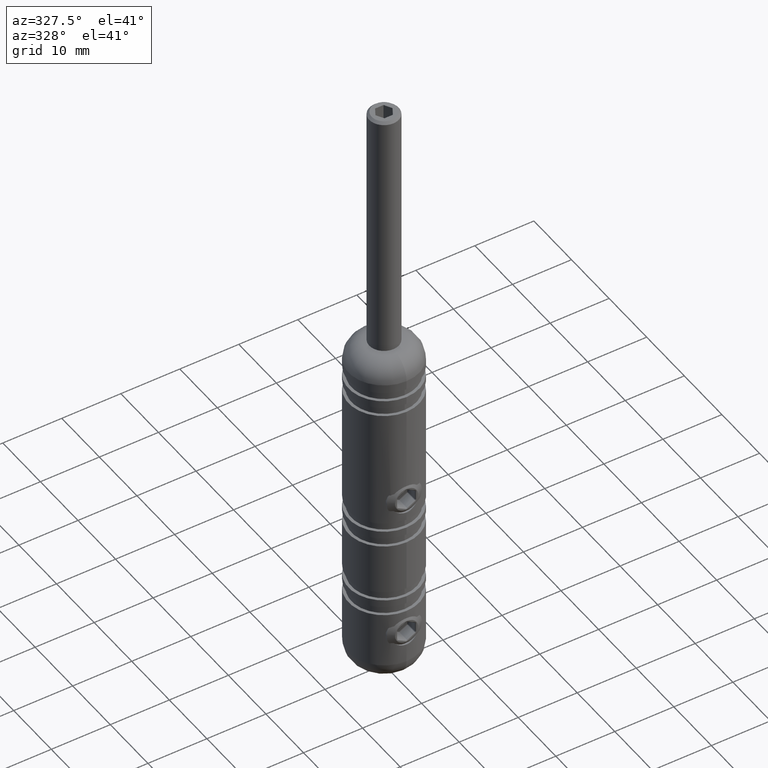
[diagram: clean part render]
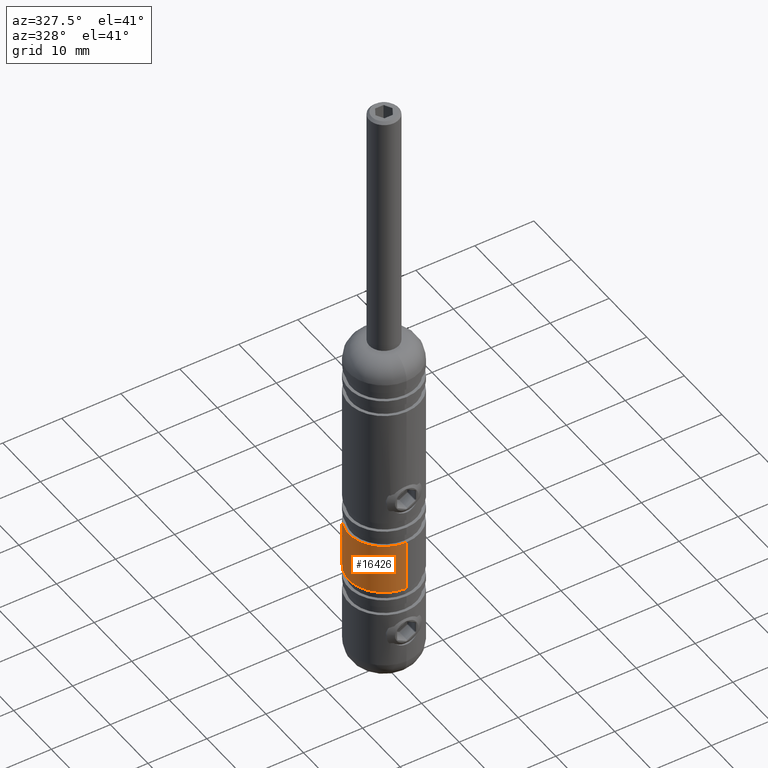
[diagram: same view with one face highlighted and labeled with its STEP entity id]
A machine part, auxiliary view. The second image highlights one B-rep face of the part: STEP entity #16426.
In plain terms, the highlighted cylindrical surface (partial cylindrical patch) has radius 6 mm, axis along (0, 0, 1).
Its self-contained STEP definition (entity closure, byte-faithful):
#186 = CARTESIAN_POINT ( 'NONE',  ( -2.369582593462937800, 5.512683608006658400, -7.536677635524410100 ) ) ;
#975 = AXIS2_PLACEMENT_3D ( 'NONE', #2247, #3426, #15023 ) ;
#1262 = CARTESIAN_POINT ( 'NONE',  ( 0.0000000000000000000, 5.999999999999976000, -5.850000000000005000 ) ) ;
#1467 = CARTESIAN_POINT ( 'NONE',  ( -2.483561809314554800, 5.461976513600076200, -8.019621045319112800 ) ) ;
#1522 = CARTESIAN_POINT ( 'NONE',  ( -2.500106784638723500, 5.454307112671438400, -8.513628119896186100 ) ) ;
#1579 = CARTESIAN_POINT ( 'NONE',  ( -1.528475880810604300, 5.803710641115029200, -10.33500441104207600 ) ) ;
#1631 = CIRCLE ( 'NONE', #8932, 5.999999999999979600 ) ;
#1721 = ORIENTED_EDGE ( 'NONE', *, *, #13453, .F. ) ;
#2247 = CARTESIAN_POINT ( 'NONE',  ( 0.0000000000000000000, 0.0000000000000000000, 30.00000000000000000 ) ) ;
#2439 = DIRECTION ( 'NONE',  ( -0.0000000000000000000, 6.241551396031028600E-017, 1.000000000000000000 ) ) ;
#2532 = AXIS2_PLACEMENT_3D ( 'NONE', #16367, #6250, #8654 ) ;
#2609 = ORIENTED_EDGE ( 'NONE', *, *, #6558, .T. ) ;
#2621 = CARTESIAN_POINT ( 'NONE',  ( -1.655142058905327000, 5.768422958052112500, -6.469449569317736100 ) ) ;
#2735 = CARTESIAN_POINT ( 'NONE',  ( -2.499892161112043700, 5.454405485178506700, -8.183124959841533700 ) ) ;
#2793 = CARTESIAN_POINT ( 'NONE',  ( -2.243493183772680600, 5.565201832296423800, -9.465307215877008000 ) ) ;
#3328 = VERTEX_POINT ( 'NONE', #8015 ) ;
#3426 = DIRECTION ( 'NONE',  ( -0.0000000000000000000, 6.241551396031028600E-017, 1.000000000000000000 ) ) ;
#3475 = EDGE_CURVE ( 'NONE', #5845, #10032, #6713, .T. ) ;
#4079 = CARTESIAN_POINT ( 'NONE',  ( -1.985928082928957600, 5.662626222328939600, -9.877192138629336400 ) ) ;
#4309 = CARTESIAN_POINT ( 'NONE',  ( 7.347777944682092200E-016, 5.999999999999976900, -10.85000000000000100 ) ) ;
#4598 = DIRECTION ( 'NONE',  ( -0.0000000000000000000, 6.241551396031028600E-017, 1.000000000000000000 ) ) ;
#4785 = DIRECTION ( 'NONE',  ( 0.0000000000000000000, -1.000000000000000000, 0.0000000000000000000 ) ) ;
#4956 = VERTEX_POINT ( 'NONE', #1262 ) ;
#5305 = CARTESIAN_POINT ( 'NONE',  ( -2.370510600221100700, 5.512296490036556300, -9.161080357092435700 ) ) ;
#5637 = B_SPLINE_CURVE_WITH_KNOTS ( 'NONE', 3,
 ( #12857, #12811, #7836, #15519, #9115, #8945, #6527, #15463, #2621, #12917, #7774, #186, #11508, #1467, #2735, #1522, #11630, #10401, #5305, #2793, #6649, #4079, #12980, #7890, #1579, #10678, #14550, #13205, #11801, #4309 ),
 .UNSPECIFIED., .F., .F.,
 ( 4, 2, 2, 2, 2, 2, 2, 2, 2, 2, 2, 2, 2, 2, 4 ),
 ( 0.0000000000000000000, 0.0004942134665145530800, 0.0009884269330291061600, 0.001482640399543659100, 0.001976853866058212300, 0.002965280799087320000, 0.003459494265601874700, 0.003953707732116432500, 0.004447921198630989800, 0.004942134665145547100, 0.005436348131660105300, 0.005930561598174661700, 0.006424775064689219000, 0.006918988531203776300, 0.007907415464232892700 ),
 .UNSPECIFIED. ) ;
#5845 = VERTEX_POINT ( 'NONE', #14756 ) ;
#6246 = EDGE_CURVE ( 'NONE', #4956, #7862, #12820, .T. ) ;
#6250 = DIRECTION ( 'NONE',  ( -0.0000000000000000000, 6.241551396031028600E-017, 1.000000000000000000 ) ) ;
#6468 = LINE ( 'NONE', #14337, #7054 ) ;
#6516 = CARTESIAN_POINT ( 'NONE',  ( 0.0000000000000000000, -5.999999999999983100, -12.70000000000000300 ) ) ;
#6527 = CARTESIAN_POINT ( 'NONE',  ( -1.258442380232151600, 5.868189014291101700, -6.183703495810528100 ) ) ;
#6558 = EDGE_CURVE ( 'NONE', #10032, #7206, #6468, .T. ) ;
#6649 = CARTESIAN_POINT ( 'NONE',  ( -2.166361182966827700, 5.596081245774381200, -9.608215165936130100 ) ) ;
#6713 = CIRCLE ( 'NONE', #2532, 5.999999999999980500 ) ;
#7054 = VECTOR ( 'NONE', #13110, 1000.000000000000000 ) ;
#7206 = VERTEX_POINT ( 'NONE', #16128 ) ;
#7394 = CARTESIAN_POINT ( 'NONE',  ( 0.0000000000000000000, -2.122127474650550100E-015, -4.000000000000003600 ) ) ;
#7538 = ORIENTED_EDGE ( 'NONE', *, *, #6246, .F. ) ;
#7713 = EDGE_CURVE ( 'NONE', #4956, #3328, #5637, .T. ) ;
#7774 = CARTESIAN_POINT ( 'NONE',  ( -2.181708341974952300, 5.590935308825272000, -7.086746876611119500 ) ) ;
#7836 = CARTESIAN_POINT ( 'NONE',  ( -0.3313286651165027700, 5.993025678387374100, -5.866609448343197600 ) ) ;
#7862 = VERTEX_POINT ( 'NONE', #13473 ) ;
#7890 = CARTESIAN_POINT ( 'NONE',  ( -1.652909006526313500, 5.769071837164835500, -10.23254878103047700 ) ) ;
#7985 = EDGE_LOOP ( 'NONE', ( #11364, #13372, #2609, #1721, #7538, #12951 ) ) ;
#8015 = CARTESIAN_POINT ( 'NONE',  ( 7.347777944682092200E-016, 5.999999999999976900, -10.85000000000000100 ) ) ;
#8654 = DIRECTION ( 'NONE',  ( 0.0000000000000000000, -1.000000000000000000, 0.0000000000000000000 ) ) ;
#8932 = AXIS2_PLACEMENT_3D ( 'NONE', #7394, #2439, #4785 ) ;
#8945 = CARTESIAN_POINT ( 'NONE',  ( -1.115495851646002100, 5.897379805078865700, -6.106682695246944600 ) ) ;
#9115 = CARTESIAN_POINT ( 'NONE',  ( -0.8134068127896111300, 5.946577916524673500, -5.980364398952573900 ) ) ;
#9125 = FACE_OUTER_BOUND ( 'NONE', #7985, .T. ) ;
#10004 = VECTOR ( 'NONE', #11947, 1000.000000000000000 ) ;
#10032 = VERTEX_POINT ( 'NONE', #6516 ) ;
#10401 = CARTESIAN_POINT ( 'NONE',  ( -2.418593444814170800, 5.491053255503478800, -9.003795991876115700 ) ) ;
#10678 = CARTESIAN_POINT ( 'NONE',  ( -1.258252906115200100, 5.868227615580726000, -10.51639808306989300 ) ) ;
#11334 = EDGE_CURVE ( 'NONE', #5845, #3328, #11401, .T. ) ;
#11364 = ORIENTED_EDGE ( 'NONE', *, *, #11334, .F. ) ;
#11401 = LINE ( 'NONE', #12212, #15852 ) ;
#11508 = CARTESIAN_POINT ( 'NONE',  ( -2.418590853962363100, 5.491054996713677000, -7.696052146183329300 ) ) ;
#11630 = CARTESIAN_POINT ( 'NONE',  ( -2.483395613810238900, 5.462051476449255800, -8.681345251360889700 ) ) ;
#11801 = CARTESIAN_POINT ( 'NONE',  ( -0.3294735782554644200, 5.999999999999979600, -10.85000000000000500 ) ) ;
#11947 = DIRECTION ( 'NONE',  ( -0.0000000000000000000, 6.241551396031028600E-017, 1.000000000000000000 ) ) ;
#12142 = CYLINDRICAL_SURFACE ( 'NONE', #975, 5.999999999999979600 ) ;
#12212 = CARTESIAN_POINT ( 'NONE',  ( 7.347880794884094100E-016, 5.999999999999979600, 30.00000000000000000 ) ) ;
#12811 = CARTESIAN_POINT ( 'NONE',  ( -0.1672401054569761800, 5.999999999999976900, -5.850000000000005900 ) ) ;
#12820 = LINE ( 'NONE', #14355, #10004 ) ;
#12857 = CARTESIAN_POINT ( 'NONE',  ( 0.0000000000000000000, 5.999999999999976000, -5.850000000000005000 ) ) ;
#12917 = CARTESIAN_POINT ( 'NONE',  ( -1.996726160520223300, 5.663027394641062500, -6.811512018285260000 ) ) ;
#12951 = ORIENTED_EDGE ( 'NONE', *, *, #7713, .T. ) ;
#12980 = CARTESIAN_POINT ( 'NONE',  ( -1.881449780072504500, 5.698635342894769800, -10.00415985378689100 ) ) ;
#13110 = DIRECTION ( 'NONE',  ( -0.0000000000000000000, 6.241551396031028600E-017, 1.000000000000000000 ) ) ;
#13205 = CARTESIAN_POINT ( 'NONE',  ( -0.6621311939231092600, 5.971116335839140800, -10.78260272902401700 ) ) ;
#13372 = ORIENTED_EDGE ( 'NONE', *, *, #3475, .T. ) ;
#13453 = EDGE_CURVE ( 'NONE', #7862, #7206, #1631, .T. ) ;
#13473 = CARTESIAN_POINT ( 'NONE',  ( 7.347880794884094100E-016, 5.999999999999977800, -4.000000000000003600 ) ) ;
#14337 = CARTESIAN_POINT ( 'NONE',  ( 0.0000000000000000000, -5.999999999999979600, 30.00000000000000000 ) ) ;
#14355 = CARTESIAN_POINT ( 'NONE',  ( 7.347880794884094100E-016, 5.999999999999979600, 30.00000000000000000 ) ) ;
#14550 = CARTESIAN_POINT ( 'NONE',  ( -1.112789484202403300, 5.897869239595865800, -10.59459194568942500 ) ) ;
#14756 = CARTESIAN_POINT ( 'NONE',  ( 7.347880794884094100E-016, 5.999999999999977800, -12.70000000000000300 ) ) ;
#15023 = DIRECTION ( 'NONE',  ( 0.0000000000000000000, -1.000000000000000000, 0.0000000000000000000 ) ) ;
#15463 = CARTESIAN_POINT ( 'NONE',  ( -1.528829007836515000, 5.803619680562188200, -6.365258295589699200 ) ) ;
#15519 = CARTESIAN_POINT ( 'NONE',  ( -0.6535671553393455100, 5.966488535110074500, -5.931352177383445200 ) ) ;
#15852 = VECTOR ( 'NONE', #4598, 1000.000000000000000 ) ;
#16128 = CARTESIAN_POINT ( 'NONE',  ( 0.0000000000000000000, -5.999999999999981300, -4.000000000000003600 ) ) ;
#16367 = CARTESIAN_POINT ( 'NONE',  ( 0.0000000000000000000, -2.665142446105249500E-015, -12.70000000000000300 ) ) ;
#16426 = ADVANCED_FACE ( 'NONE', ( #9125 ), #12142, .T. ) ;